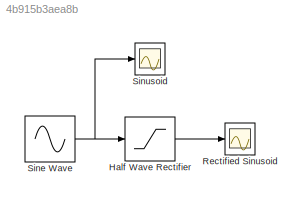
MODEL slx_4b915b3aea8b
KIND model
BLOCK [Saturate] Half Wave Rectifier
  InputPortMap = u0
  LowerLimit = 0
  Ports = [1, 1]
  UpperLimit = 1000
BLOCK [Scope] Rectified Sinusoid
  DataFormat = StructureWithTime
  Floating = off
  NumInputPorts = 1
  Ports = [1]
  SampleTime = 0
  ShowLegends = off
  YMax = 1.5
  YMin = -0.5
BLOCK [Sin] Sine Wave
  Frequency = 2000*pi
  Ports = [0, 1]
  SampleTime = 2e-6
  Samples = 50
BLOCK [Scope] Sinusoid
  DataFormat = StructureWithTime
  Floating = off
  NumInputPorts = 1
  Ports = [1]
  SampleTime = 0
  SaveName = ScopeData1
  ShowLegends = off
  YMax = 1.5
  YMin = -1.5
LINE Half Wave Rectifier:1 -> Rectified Sinusoid:1
NET Sine Wave:1 -> Half Wave Rectifier:1, Sinusoid:1
note: NET lines group one-source signal fan-out (src -> all destinations, sorted); 1:1 wires keep LINE
